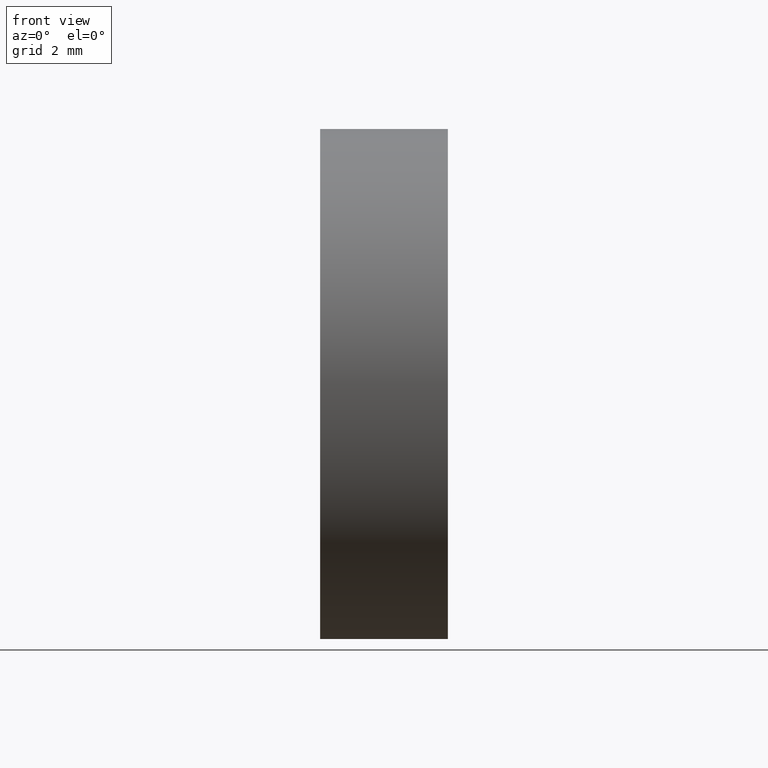
[diagram: clean part render]
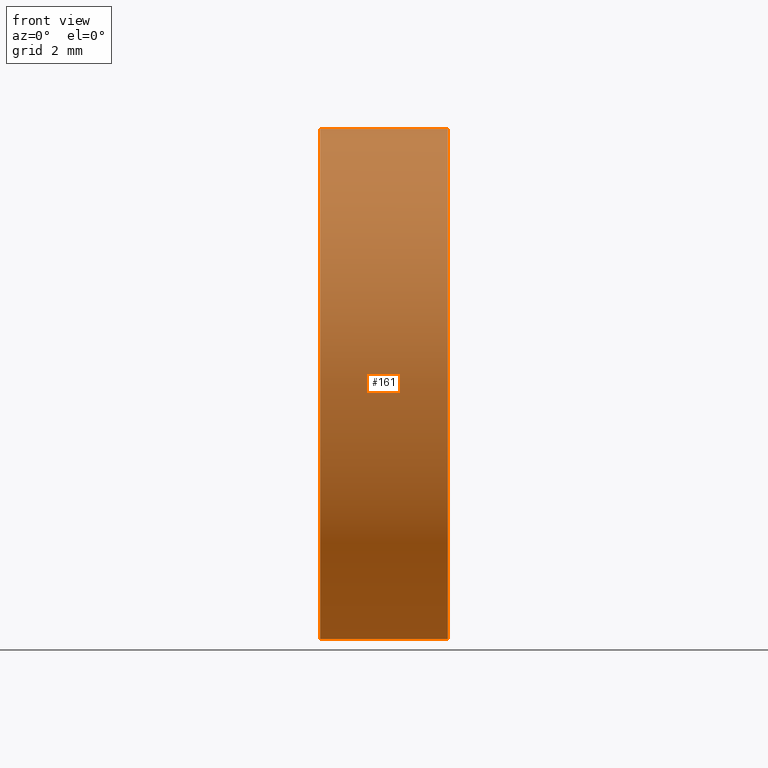
[diagram: same view with one face highlighted and labeled with its STEP entity id]
A machine part, front view. The second image highlights one B-rep face of the part: STEP entity #161.
In plain terms, the highlighted cylindrical surface (partial cylindrical patch) has radius 6.35 mm, axis along (-1, -0, -0).
Its self-contained STEP definition (entity closure, byte-faithful):
#12 = EDGE_CURVE ( 'NONE', #82, #58, #140, .T. ) ;
#22 = ORIENTED_EDGE ( 'NONE', *, *, #12, .T. ) ;
#28 = DIRECTION ( 'NONE',  ( 0.0000000000000000000, 0.0000000000000000000, 1.000000000000000000 ) ) ;
#29 = LINE ( 'NONE', #64, #141 ) ;
#34 = CARTESIAN_POINT ( 'NONE',  ( 0.0000000000000000000, 0.0000000000000000000, 0.0000000000000000000 ) ) ;
#46 = DIRECTION ( 'NONE',  ( -1.000000000000000000, -0.0000000000000000000, -0.0000000000000000000 ) ) ;
#47 = VECTOR ( 'NONE', #73, 1000.000000000000000 ) ;
#49 = DIRECTION ( 'NONE',  ( 0.0000000000000000000, 0.0000000000000000000, 1.000000000000000000 ) ) ;
#53 = LINE ( 'NONE', #159, #47 ) ;
#58 = VERTEX_POINT ( 'NONE', #134 ) ;
#64 = CARTESIAN_POINT ( 'NONE',  ( 0.0000000000000000000, 7.776507174585694100E-016, -6.350000000000001400 ) ) ;
#66 = CIRCLE ( 'NONE', #87, 6.349999999999999600 ) ;
#69 = DIRECTION ( 'NONE',  ( -1.000000000000000000, -0.0000000000000000000, -0.0000000000000000000 ) ) ;
#73 = DIRECTION ( 'NONE',  ( -1.000000000000000000, -0.0000000000000000000, -0.0000000000000000000 ) ) ;
#74 = CARTESIAN_POINT ( 'NONE',  ( 0.0000000000000000000, 7.776507174585693100E-016, -6.349999999999999600 ) ) ;
#76 = EDGE_CURVE ( 'NONE', #58, #166, #53, .T. ) ;
#82 = VERTEX_POINT ( 'NONE', #129 ) ;
#86 = EDGE_LOOP ( 'NONE', ( #122, #22, #137, #89 ) ) ;
#87 = AXIS2_PLACEMENT_3D ( 'NONE', #34, #126, #49 ) ;
#89 = ORIENTED_EDGE ( 'NONE', *, *, #157, .F. ) ;
#93 = CARTESIAN_POINT ( 'NONE',  ( 0.0000000000000000000, 0.0000000000000000000, 0.0000000000000000000 ) ) ;
#97 = DIRECTION ( 'NONE',  ( -1.000000000000000000, -0.0000000000000000000, -0.0000000000000000000 ) ) ;
#112 = DIRECTION ( 'NONE',  ( 0.0000000000000000000, 0.0000000000000000000, 1.000000000000000000 ) ) ;
#122 = ORIENTED_EDGE ( 'NONE', *, *, #139, .F. ) ;
#126 = DIRECTION ( 'NONE',  ( -1.000000000000000000, -0.0000000000000000000, -0.0000000000000000000 ) ) ;
#129 = CARTESIAN_POINT ( 'NONE',  ( 3.181816148789554000, 7.776507174585711900E-016, -6.350000000000015600 ) ) ;
#133 = VERTEX_POINT ( 'NONE', #74 ) ;
#134 = CARTESIAN_POINT ( 'NONE',  ( 3.181816148789554000, 0.0000000000000000000, 6.350000000000015600 ) ) ;
#137 = ORIENTED_EDGE ( 'NONE', *, *, #76, .T. ) ;
#139 = EDGE_CURVE ( 'NONE', #82, #133, #29, .T. ) ;
#140 = CIRCLE ( 'NONE', #144, 6.350000000000003200 ) ;
#141 = VECTOR ( 'NONE', #46, 1000.000000000000000 ) ;
#143 = CARTESIAN_POINT ( 'NONE',  ( 3.181816148789554000, 0.0000000000000000000, 0.0000000000000000000 ) ) ;
#144 = AXIS2_PLACEMENT_3D ( 'NONE', #143, #69, #28 ) ;
#149 = CARTESIAN_POINT ( 'NONE',  ( 0.0000000000000000000, 0.0000000000000000000, 6.349999999999999600 ) ) ;
#153 = AXIS2_PLACEMENT_3D ( 'NONE', #93, #97, #112 ) ;
#155 = FACE_OUTER_BOUND ( 'NONE', #86, .T. ) ;
#157 = EDGE_CURVE ( 'NONE', #133, #166, #66, .T. ) ;
#159 = CARTESIAN_POINT ( 'NONE',  ( 0.0000000000000000000, 0.0000000000000000000, 6.350000000000001400 ) ) ;
#161 = ADVANCED_FACE ( 'NONE', ( #155 ), #162, .T. ) ;
#162 = CYLINDRICAL_SURFACE ( 'NONE', #153, 6.350000000000001400 ) ;
#166 = VERTEX_POINT ( 'NONE', #149 ) ;